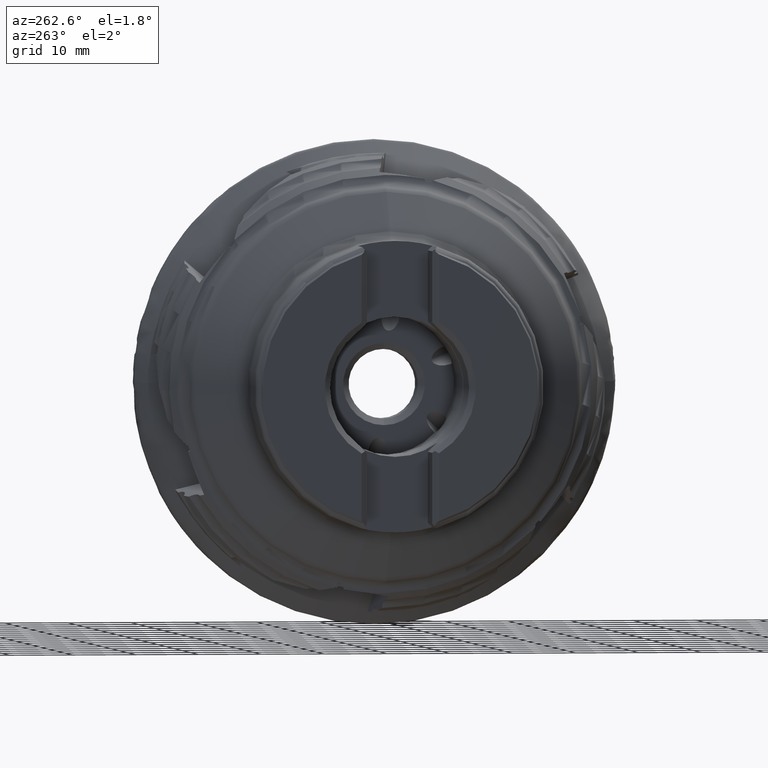
[diagram: clean part render]
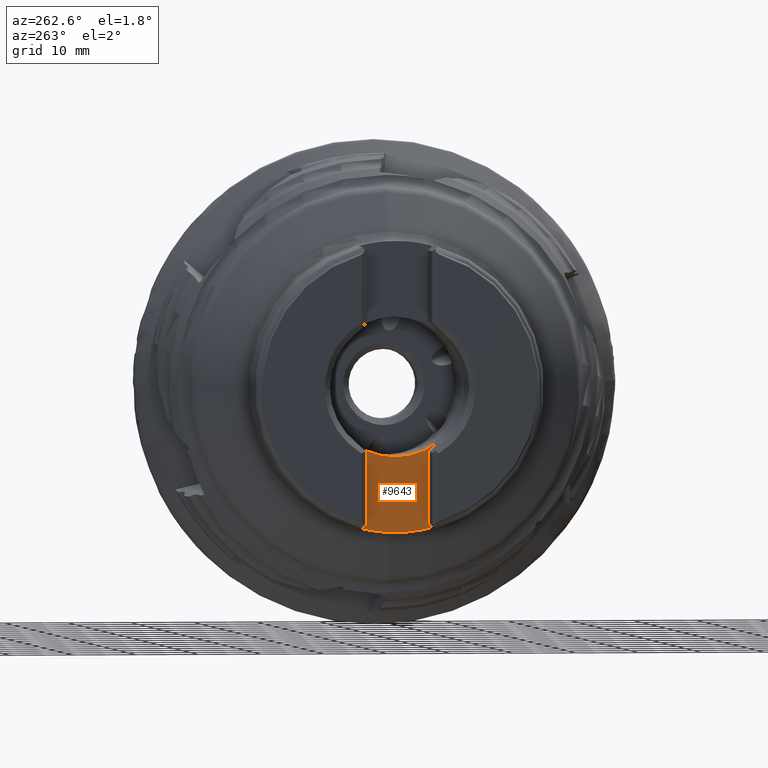
[diagram: same view with one face highlighted and labeled with its STEP entity id]
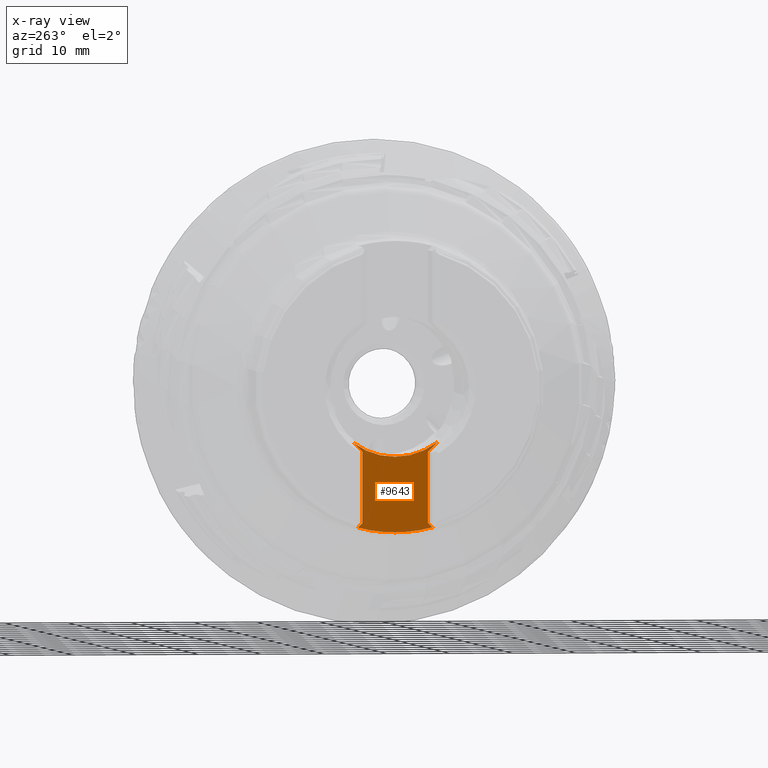
[diagram: x-ray of the same camera — body ghosted, the highlighted face saturated]
A machine part, auxiliary view. The second image highlights one B-rep face of the part: STEP entity #9643.
The next image is the same camera in x-ray: the body ghosted, the highlighted face saturated — about 0% of this face is hidden behind the body in this view.
In plain terms, the highlighted planar face has unit normal (-1, 0, 0).
Its self-contained STEP definition (entity closure, byte-faithful):
#40 = CIRCLE ( 'NONE', #9733, 11.07499999999999800 ) ;
#96 = EDGE_CURVE ( 'NONE', #2880, #3656, #6596, .T. ) ;
#520 = CARTESIAN_POINT ( 'NONE',  ( -32.90000000000000600, 5.924000852636035000, -22.22400085263603800 ) ) ;
#801 = ORIENTED_EDGE ( 'NONE', *, *, #3159, .F. ) ;
#1058 = VERTEX_POINT ( 'NONE', #520 ) ;
#1100 = ORIENTED_EDGE ( 'NONE', *, *, #8541, .F. ) ;
#1150 = FACE_OUTER_BOUND ( 'NONE', #9236, .T. ) ;
#1257 = EDGE_CURVE ( 'NONE', #11920, #4597, #6241, .T. ) ;
#1276 = DIRECTION ( 'NONE',  ( -1.000000000000000000, 0.0000000000000000000, 0.0000000000000000000 ) ) ;
#1363 = ORIENTED_EDGE ( 'NONE', *, *, #11848, .T. ) ;
#1559 = EDGE_CURVE ( 'NONE', #1058, #5475, #3925, .T. ) ;
#1626 = DIRECTION ( 'NONE',  ( 1.000000000000000000, -0.0000000000000000000, -0.0000000000000000000 ) ) ;
#2008 = CARTESIAN_POINT ( 'NONE',  ( -32.90000000000000600, -6.625138897463410000, -8.874861102536607800 ) ) ;
#2554 = DIRECTION ( 'NONE',  ( 1.000000000000000000, -0.0000000000000000000, -0.0000000000000000000 ) ) ;
#2624 = CARTESIAN_POINT ( 'NONE',  ( -32.90000000000000600, 5.199999999999996600, -10.30000000000000600 ) ) ;
#2754 = CARTESIAN_POINT ( 'NONE',  ( -32.90000000000000600, 0.0000000000000000000, -22.99999999999999600 ) ) ;
#2788 = LINE ( 'NONE', #5930, #7719 ) ;
#2863 = CARTESIAN_POINT ( 'NONE',  ( -32.90000000000000600, 6.625138897463362900, -8.874861102536639700 ) ) ;
#2880 = VERTEX_POINT ( 'NONE', #7789 ) ;
#3024 = CIRCLE ( 'NONE', #6798, 22.99999999999999600 ) ;
#3066 = EDGE_CURVE ( 'NONE', #7563, #4597, #40, .T. ) ;
#3159 = EDGE_CURVE ( 'NONE', #3656, #4601, #9059, .T. ) ;
#3166 = ORIENTED_EDGE ( 'NONE', *, *, #3066, .T. ) ;
#3559 = ORIENTED_EDGE ( 'NONE', *, *, #1257, .F. ) ;
#3574 = ORIENTED_EDGE ( 'NONE', *, *, #1559, .F. ) ;
#3614 = AXIS2_PLACEMENT_3D ( 'NONE', #3988, #1276, #7775 ) ;
#3656 = VERTEX_POINT ( 'NONE', #4929 ) ;
#3713 = EDGE_CURVE ( 'NONE', #5475, #11920, #2788, .T. ) ;
#3837 = DIRECTION ( 'NONE',  ( 1.000000000000000000, -0.0000000000000000000, -0.0000000000000000000 ) ) ;
#3925 = LINE ( 'NONE', #11206, #6381 ) ;
#3988 = CARTESIAN_POINT ( 'NONE',  ( -32.90000000000000600, 5.199999999999996600, -7.800000000000005200 ) ) ;
#4050 = CARTESIAN_POINT ( 'NONE',  ( -32.90000000000000600, -5.200000000000002800, -10.30000000000000600 ) ) ;
#4052 = CIRCLE ( 'NONE', #7796, 11.07499999999999800 ) ;
#4137 = ORIENTED_EDGE ( 'NONE', *, *, #4831, .F. ) ;
#4189 = CARTESIAN_POINT ( 'NONE',  ( -32.90000000000000600, 7.700000000000005500, -7.800000000000005200 ) ) ;
#4291 = DIRECTION ( 'NONE',  ( 1.000000000000000000, -0.0000000000000000000, -0.0000000000000000000 ) ) ;
#4483 = CARTESIAN_POINT ( 'NONE',  ( -32.90000000000000600, 5.199999999999996600, -21.50000000000000000 ) ) ;
#4597 = VERTEX_POINT ( 'NONE', #2863 ) ;
#4601 = VERTEX_POINT ( 'NONE', #10254 ) ;
#4791 = CARTESIAN_POINT ( 'NONE',  ( -32.90000000000000600, -5.200000000000002800, -21.50000000000000400 ) ) ;
#4831 = EDGE_CURVE ( 'NONE', #8348, #2880, #6838, .T. ) ;
#4846 = CARTESIAN_POINT ( 'NONE',  ( -32.90000000000000600, 0.0000000000000000000, -11.07499999999999800 ) ) ;
#4929 = CARTESIAN_POINT ( 'NONE',  ( -32.90000000000000600, -5.200000000000002800, -21.50000000000000400 ) ) ;
#4984 = DIRECTION ( 'NONE',  ( -0.0000000000000000000, 0.7071067811865489100, -0.7071067811865461300 ) ) ;
#5004 = PLANE ( 'NONE',  #3614 ) ;
#5475 = VERTEX_POINT ( 'NONE', #4483 ) ;
#5677 = DIRECTION ( 'NONE',  ( -0.0000000000000000000, -0.0000000000000000000, -1.000000000000000000 ) ) ;
#5700 = DIRECTION ( 'NONE',  ( -0.0000000000000000000, -0.7071067811865489100, 0.7071067811865462400 ) ) ;
#5930 = CARTESIAN_POINT ( 'NONE',  ( -32.90000000000000600, 5.199999999999996600, -10.30000000000000600 ) ) ;
#6241 = LINE ( 'NONE', #4189, #8701 ) ;
#6381 = VECTOR ( 'NONE', #5700, 1000.000000000000000 ) ;
#6586 = VECTOR ( 'NONE', #10155, 1000.000000000000100 ) ;
#6596 = LINE ( 'NONE', #4791, #8768 ) ;
#6798 = AXIS2_PLACEMENT_3D ( 'NONE', #9383, #3837, #10285 ) ;
#6838 = LINE ( 'NONE', #4050, #11449 ) ;
#7194 = CARTESIAN_POINT ( 'NONE',  ( -32.90000000000000600, 0.0000000000000000000, 0.0000000000000000000 ) ) ;
#7563 = VERTEX_POINT ( 'NONE', #4846 ) ;
#7678 = CIRCLE ( 'NONE', #8707, 22.99999999999999600 ) ;
#7719 = VECTOR ( 'NONE', #9602, 1000.000000000000000 ) ;
#7775 = DIRECTION ( 'NONE',  ( 0.0000000000000000000, 0.0000000000000000000, 1.000000000000000000 ) ) ;
#7789 = CARTESIAN_POINT ( 'NONE',  ( -32.90000000000000600, -5.200000000000002800, -10.30000000000000600 ) ) ;
#7796 = AXIS2_PLACEMENT_3D ( 'NONE', #8107, #2554, #9061 ) ;
#7899 = DIRECTION ( 'NONE',  ( -0.0000000000000000000, 0.7071067811865487900, 0.7071067811865463500 ) ) ;
#8107 = CARTESIAN_POINT ( 'NONE',  ( -32.90000000000000600, 0.0000000000000000000, 0.0000000000000000000 ) ) ;
#8116 = DIRECTION ( 'NONE',  ( 0.0000000000000000000, 0.0000000000000000000, 1.000000000000000000 ) ) ;
#8163 = ORIENTED_EDGE ( 'NONE', *, *, #11482, .F. ) ;
#8348 = VERTEX_POINT ( 'NONE', #2008 ) ;
#8541 = EDGE_CURVE ( 'NONE', #9477, #1058, #7678, .T. ) ;
#8701 = VECTOR ( 'NONE', #7899, 1000.000000000000000 ) ;
#8707 = AXIS2_PLACEMENT_3D ( 'NONE', #9814, #4291, #10724 ) ;
#8768 = VECTOR ( 'NONE', #5677, 1000.000000000000000 ) ;
#9059 = LINE ( 'NONE', #9259, #6586 ) ;
#9061 = DIRECTION ( 'NONE',  ( 0.0000000000000000000, 0.0000000000000000000, 1.000000000000000000 ) ) ;
#9103 = ORIENTED_EDGE ( 'NONE', *, *, #3713, .F. ) ;
#9189 = ORIENTED_EDGE ( 'NONE', *, *, #96, .F. ) ;
#9236 = EDGE_LOOP ( 'NONE', ( #801, #9189, #4137, #1363, #3166, #3559, #9103, #3574, #1100, #8163 ) ) ;
#9259 = CARTESIAN_POINT ( 'NONE',  ( -32.90000000000000600, -8.364125846277728400, -24.66412584627772000 ) ) ;
#9383 = CARTESIAN_POINT ( 'NONE',  ( -32.90000000000000600, 0.0000000000000000000, 0.0000000000000000000 ) ) ;
#9477 = VERTEX_POINT ( 'NONE', #2754 ) ;
#9602 = DIRECTION ( 'NONE',  ( -0.0000000000000000000, -0.0000000000000000000, 1.000000000000000000 ) ) ;
#9643 = ADVANCED_FACE ( 'NONE', ( #1150 ), #5004, .T. ) ;
#9733 = AXIS2_PLACEMENT_3D ( 'NONE', #7194, #1626, #8116 ) ;
#9814 = CARTESIAN_POINT ( 'NONE',  ( -32.90000000000000600, 0.0000000000000000000, 0.0000000000000000000 ) ) ;
#10155 = DIRECTION ( 'NONE',  ( -0.0000000000000000000, -0.7071067811865486800, -0.7071067811865463500 ) ) ;
#10254 = CARTESIAN_POINT ( 'NONE',  ( -32.90000000000000600, -5.924000852636035000, -22.22400085263603800 ) ) ;
#10285 = DIRECTION ( 'NONE',  ( 0.0000000000000000000, 5.329070518200751400E-015, 1.000000000000000000 ) ) ;
#10724 = DIRECTION ( 'NONE',  ( 0.0000000000000000000, 0.0000000000000000000, 1.000000000000000000 ) ) ;
#11206 = CARTESIAN_POINT ( 'NONE',  ( -32.90000000000000600, 5.199999999999996600, -21.50000000000000000 ) ) ;
#11449 = VECTOR ( 'NONE', #4984, 1000.000000000000100 ) ;
#11482 = EDGE_CURVE ( 'NONE', #4601, #9477, #3024, .T. ) ;
#11848 = EDGE_CURVE ( 'NONE', #8348, #7563, #4052, .T. ) ;
#11920 = VERTEX_POINT ( 'NONE', #2624 ) ;